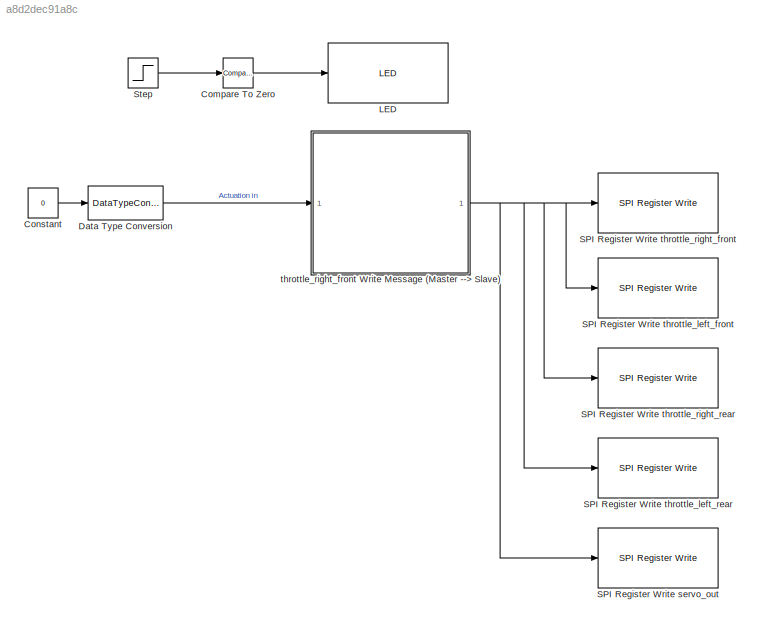
MODEL slx_a8d2dec91a8c
KIND model
CONFIG AbsTol = auto
CONFIG EnableMultiTasking = on
CONFIG FixedStep = auto
CONFIG MaxStep = auto
CONFIG MinStep = auto
CONFIG RelTol = 1e-3
CONFIG SampleTimeConstraint = Unconstrained
CONFIG Solver = FixedStepAuto
CONFIG SolverName = FixedStepAuto
CONFIG StartTime = 0.0
CONFIG StopTime = inf
BLOCK [Reference] Compare To Zero  REF=simulink/Logic and Bit
Operations/Compare
To Zero
  Ports = [1, 1]
  SourceBlock = simulink/Logic and Bit\nOperations/Compare\nTo Zero
  SourceProductBaseCode = SL
  SourceProductName = Simulink
  SourceType = Compare To Zero
BLOCK [Constant] Constant
  Value = 0
BLOCK [DataTypeConversion] Data Type Conversion
  LockScale = on
  OutDataTypeStr = int16
  RndMeth = Nearest
  SaturateOnIntegerOverflow = off
BLOCK [Reference] LED  REF=embdlinuxlib/LED
  Ports = [1]
  SourceBlock = embdlinuxlib/LED
  SourceProductBaseCode = RASPPI
  SourceProductName = Simulink Support Package for Raspberry Pi Hardware
  SourceType = LED Write
BLOCK [Reference] SPI Register Write servo_out   REF=raspberrypilib/SPI Register Write
  Ports = [1]
  SourceBlock = raspberrypilib/SPI Register Write
  SourceProductBaseCode = RASPPI
  SourceProductName = Simulink Support Package for Raspberry Pi Hardware
  SourceType = codertarget.raspi.internal.SPIRegisterWrite
BLOCK [Reference] SPI Register Write throttle_left_front  REF=raspberrypilib/SPI Register Write
  Ports = [1]
  SourceBlock = raspberrypilib/SPI Register Write
  SourceProductBaseCode = RASPPI
  SourceProductName = Simulink Support Package for Raspberry Pi Hardware
  SourceType = codertarget.raspi.internal.SPIRegisterWrite
BLOCK [Reference] SPI Register Write throttle_left_rear  REF=raspberrypilib/SPI Register Write
  Ports = [1]
  SourceBlock = raspberrypilib/SPI Register Write
  SourceProductBaseCode = RASPPI
  SourceProductName = Simulink Support Package for Raspberry Pi Hardware
  SourceType = codertarget.raspi.internal.SPIRegisterWrite
BLOCK [Reference] SPI Register Write throttle_right_front  REF=raspberrypilib/SPI Register Write
  Ports = [1]
  SourceBlock = raspberrypilib/SPI Register Write
  SourceProductBaseCode = RASPPI
  SourceProductName = Simulink Support Package for Raspberry Pi Hardware
  SourceType = codertarget.raspi.internal.SPIRegisterWrite
BLOCK [Reference] SPI Register Write throttle_right_rear  REF=raspberrypilib/SPI Register Write
  Ports = [1]
  SourceBlock = raspberrypilib/SPI Register Write
  SourceProductBaseCode = RASPPI
  SourceProductName = Simulink Support Package for Raspberry Pi Hardware
  SourceType = codertarget.raspi.internal.SPIRegisterWrite
BLOCK [Step] Step
  SampleTime = 0
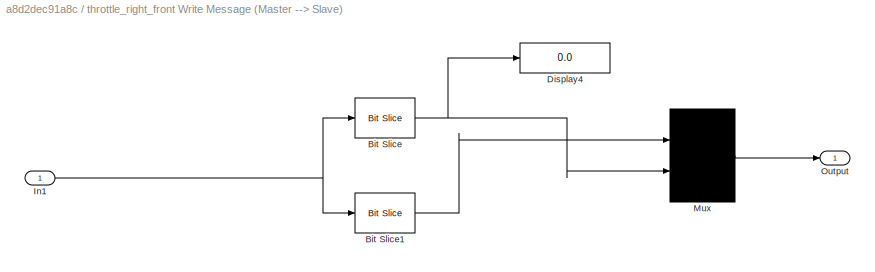
BLOCK [SubSystem] throttle_right_front Write Message (Master --> Slave)
  Ports = [1, 1]
  RequestExecContextInheritance = off
BLOCK [Reference] throttle_right_front Write Message (Master --> Slave)/Bit Slice  REF=hdlsllib/Logic and Bit
Operations/Bit Slice
  Ports = [1, 1]
  SourceBlock = hdlsllib/Logic and Bit\nOperations/Bit Slice
  SourceProductBaseCode = HD
  SourceProductName = HDL Coder
  SourceType = Bit Slice
BLOCK [Reference] throttle_right_front Write Message (Master --> Slave)/Bit Slice1  REF=hdlsllib/Logic and Bit
Operations/Bit Slice
  Ports = [1, 1]
  SourceBlock = hdlsllib/Logic and Bit\nOperations/Bit Slice
  SourceProductBaseCode = HD
  SourceProductName = HDL Coder
  SourceType = Bit Slice
BLOCK [Display] throttle_right_front Write Message (Master --> Slave)/Display4
  Decimation = 1
  Ports = [1]
BLOCK [Inport] throttle_right_front Write Message (Master --> Slave)/In1
  IconDisplay = Port number
BLOCK [Mux] throttle_right_front Write Message (Master --> Slave)/Mux
  DisplayOption = signals
  Inputs = 2
  Ports = [2, 1]
BLOCK [Outport] throttle_right_front Write Message (Master --> Slave)/Output
  IconDisplay = Port number
LINE Compare To Zero:1 -> LED:1
LINE Constant:1 -> Data Type Conversion:1
LINE Data Type Conversion:1 -> throttle_right_front Write Message (Master --> Slave):1
LINE Step:1 -> Compare To Zero:1
LINE throttle_right_front Write Message (Master --> Slave)/Bit Slice1:1 -> throttle_right_front Write Message (Master --> Slave)/Mux:1
NET throttle_right_front Write Message (Master --> Slave)/Bit Slice:1 -> throttle_right_front Write Message (Master --> Slave)/Display4:1, throttle_right_front Write Message (Master --> Slave)/Mux:2
NET throttle_right_front Write Message (Master --> Slave)/In1:1 -> throttle_right_front Write Message (Master --> Slave)/Bit Slice1:1, throttle_right_front Write Message (Master --> Slave)/Bit Slice:1
LINE throttle_right_front Write Message (Master --> Slave)/Mux:1 -> throttle_right_front Write Message (Master --> Slave)/Output:1
NET throttle_right_front Write Message (Master --> Slave):1 -> SPI Register Write servo_out :1, SPI Register Write throttle_left_front:1, SPI Register Write throttle_left_rear:1, SPI Register Write throttle_right_front:1, SPI Register Write throttle_right_rear:1
note: NET lines group one-source signal fan-out (src -> all destinations, sorted); 1:1 wires keep LINE
